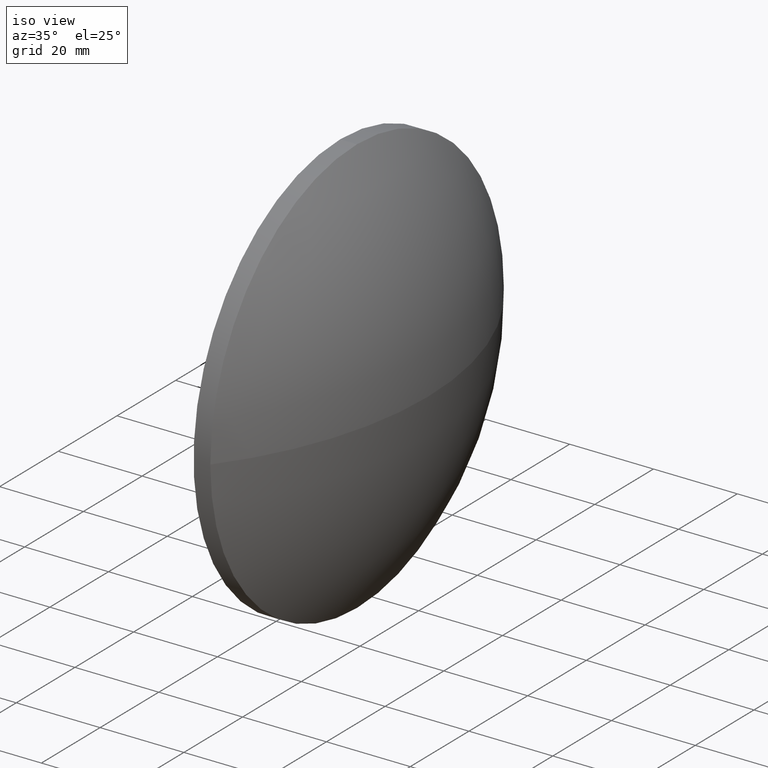
[diagram: clean part render]
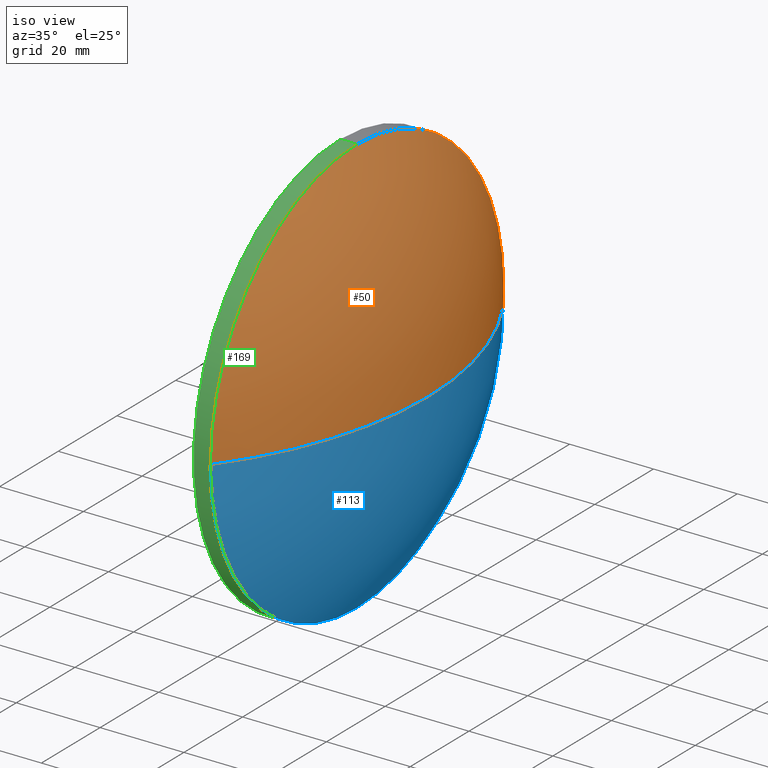
[diagram: same view with three faces highlighted in distinct colors, each labeled with its STEP entity id]
A machine part, iso view with three faces highlighted in distinct colors.
Their STEP definitions:

[orange] entity #50 — the highlighted spherical surface has radius 82.609 mm.
#5 = AXIS2_PLACEMENT_3D ( 'NONE', #85, #70, #136 ) ;
#14 = VERTEX_POINT ( 'NONE', #164 ) ;
#27 = DIRECTION ( 'NONE',  ( -0.0000000000000000000, 0.0000000000000000000, 1.000000000000000000 ) ) ;
#31 = DIRECTION ( 'NONE',  ( -1.000000000000000000, -0.0000000000000000000, -0.0000000000000000000 ) ) ;
#32 = DIRECTION ( 'NONE',  ( 0.0000000000000000000, 0.0000000000000000000, 1.000000000000000000 ) ) ;
#37 = EDGE_LOOP ( 'NONE', ( #75, #96, #149, #99 ) ) ;
#39 = CIRCLE ( 'NONE', #73, 49.99999999999999300 ) ;
#44 = DIRECTION ( 'NONE',  ( 1.000000000000000000, 0.0000000000000000000, 0.0000000000000000000 ) ) ;
#46 = SPHERICAL_SURFACE ( 'NONE', #5, 82.60897626112760900 ) ;
#50 = ADVANCED_FACE ( 'NONE', ( #115 ), #46, .T. ) ;
#55 = DIRECTION ( 'NONE',  ( 0.0000000000000000000, 1.224646799147353200E-016, -1.000000000000000000 ) ) ;
#57 = CARTESIAN_POINT ( 'NONE',  ( 546.2818195196480200, 50.38150423912338000, 0.0000000000000000000 ) ) ;
#59 = VERTEX_POINT ( 'NONE', #139 ) ;
#61 = DIRECTION ( 'NONE',  ( 0.0000000000000000000, 0.0000000000000000000, 1.000000000000000000 ) ) ;
#64 = CARTESIAN_POINT ( 'NONE',  ( 612.0407957807756200, 50.38150423912338700, 0.0000000000000000000 ) ) ;
#68 = CIRCLE ( 'NONE', #135, 82.60897626112759400 ) ;
#70 = DIRECTION ( 'NONE',  ( -0.0000000000000000000, 0.0000000000000000000, -1.000000000000000000 ) ) ;
#73 = AXIS2_PLACEMENT_3D ( 'NONE', #64, #127, #61 ) ;
#75 = ORIENTED_EDGE ( 'NONE', *, *, #138, .F. ) ;
#80 = CARTESIAN_POINT ( 'NONE',  ( 546.2818195196480200, 50.38150423912338000, 0.0000000000000000000 ) ) ;
#81 = AXIS2_PLACEMENT_3D ( 'NONE', #144, #31, #32 ) ;
#85 = CARTESIAN_POINT ( 'NONE',  ( 546.2818195196480200, 50.38150423912338000, 0.0000000000000000000 ) ) ;
#86 = CARTESIAN_POINT ( 'NONE',  ( 612.0407957807756200, 100.3815042391234000, 0.0000000000000000000 ) ) ;
#88 = AXIS2_PLACEMENT_3D ( 'NONE', #57, #27, #44 ) ;
#95 = CARTESIAN_POINT ( 'NONE',  ( 628.8907957807756500, 50.38150423912338700, 0.0000000000000000000 ) ) ;
#96 = ORIENTED_EDGE ( 'NONE', *, *, #123, .T. ) ;
#99 = ORIENTED_EDGE ( 'NONE', *, *, #165, .F. ) ;
#115 = FACE_OUTER_BOUND ( 'NONE', #37, .T. ) ;
#121 = CIRCLE ( 'NONE', #81, 49.99999999999999300 ) ;
#123 = EDGE_CURVE ( 'NONE', #152, #174, #181, .T. ) ;
#127 = DIRECTION ( 'NONE',  ( -1.000000000000000000, -0.0000000000000000000, -0.0000000000000000000 ) ) ;
#135 = AXIS2_PLACEMENT_3D ( 'NONE', #80, #55, #150 ) ;
#136 = DIRECTION ( 'NONE',  ( 0.0000000000000000000, 1.000000000000000000, 0.0000000000000000000 ) ) ;
#138 = EDGE_CURVE ( 'NONE', #152, #14, #68, .T. ) ;
#139 = CARTESIAN_POINT ( 'NONE',  ( 612.0407957807756200, 50.38150423912338700, 49.99999999999999300 ) ) ;
#144 = CARTESIAN_POINT ( 'NONE',  ( 612.0407957807756200, 50.38150423912338700, 0.0000000000000000000 ) ) ;
#149 = ORIENTED_EDGE ( 'NONE', *, *, #180, .F. ) ;
#150 = DIRECTION ( 'NONE',  ( 0.0000000000000000000, 1.000000000000000000, 1.224646799147353500E-016 ) ) ;
#152 = VERTEX_POINT ( 'NONE', #95 ) ;
#164 = CARTESIAN_POINT ( 'NONE',  ( 612.0407957807756200, 0.3815042391233786100, -6.123233995736766100E-015 ) ) ;
#165 = EDGE_CURVE ( 'NONE', #14, #59, #121, .T. ) ;
#174 = VERTEX_POINT ( 'NONE', #86 ) ;
#180 = EDGE_CURVE ( 'NONE', #59, #174, #39, .T. ) ;
#181 = CIRCLE ( 'NONE', #88, 82.60897626112762300 ) ;

[blue] entity #113 — the highlighted spherical surface has radius 82.609 mm.
#2 = DIRECTION ( 'NONE',  ( 0.0000000000000000000, 0.0000000000000000000, 1.000000000000000000 ) ) ;
#6 = CIRCLE ( 'NONE', #172, 49.99999999999999300 ) ;
#14 = VERTEX_POINT ( 'NONE', #164 ) ;
#20 = DIRECTION ( 'NONE',  ( -0.0000000000000000000, 0.0000000000000000000, -1.000000000000000000 ) ) ;
#27 = DIRECTION ( 'NONE',  ( -0.0000000000000000000, 0.0000000000000000000, 1.000000000000000000 ) ) ;
#29 = AXIS2_PLACEMENT_3D ( 'NONE', #173, #119, #51 ) ;
#34 = EDGE_LOOP ( 'NONE', ( #134, #42, #146, #170 ) ) ;
#36 = CIRCLE ( 'NONE', #29, 49.99999999999999300 ) ;
#42 = ORIENTED_EDGE ( 'NONE', *, *, #138, .T. ) ;
#44 = DIRECTION ( 'NONE',  ( 1.000000000000000000, 0.0000000000000000000, 0.0000000000000000000 ) ) ;
#51 = DIRECTION ( 'NONE',  ( 0.0000000000000000000, 0.0000000000000000000, 1.000000000000000000 ) ) ;
#55 = DIRECTION ( 'NONE',  ( 0.0000000000000000000, 1.224646799147353200E-016, -1.000000000000000000 ) ) ;
#57 = CARTESIAN_POINT ( 'NONE',  ( 546.2818195196480200, 50.38150423912338000, 0.0000000000000000000 ) ) ;
#68 = CIRCLE ( 'NONE', #135, 82.60897626112759400 ) ;
#77 = DIRECTION ( 'NONE',  ( 0.0000000000000000000, 1.000000000000000000, 0.0000000000000000000 ) ) ;
#80 = CARTESIAN_POINT ( 'NONE',  ( 546.2818195196480200, 50.38150423912338000, 0.0000000000000000000 ) ) ;
#86 = CARTESIAN_POINT ( 'NONE',  ( 612.0407957807756200, 100.3815042391234000, 0.0000000000000000000 ) ) ;
#87 = SPHERICAL_SURFACE ( 'NONE', #163, 82.60897626112760900 ) ;
#88 = AXIS2_PLACEMENT_3D ( 'NONE', #57, #27, #44 ) ;
#91 = DIRECTION ( 'NONE',  ( -1.000000000000000000, -0.0000000000000000000, -0.0000000000000000000 ) ) ;
#95 = CARTESIAN_POINT ( 'NONE',  ( 628.8907957807756500, 50.38150423912338700, 0.0000000000000000000 ) ) ;
#113 = ADVANCED_FACE ( 'NONE', ( #159 ), #87, .T. ) ;
#116 = EDGE_CURVE ( 'NONE', #177, #14, #6, .T. ) ;
#119 = DIRECTION ( 'NONE',  ( -1.000000000000000000, -0.0000000000000000000, -0.0000000000000000000 ) ) ;
#123 = EDGE_CURVE ( 'NONE', #152, #174, #181, .T. ) ;
#134 = ORIENTED_EDGE ( 'NONE', *, *, #123, .F. ) ;
#135 = AXIS2_PLACEMENT_3D ( 'NONE', #80, #55, #150 ) ;
#138 = EDGE_CURVE ( 'NONE', #152, #14, #68, .T. ) ;
#146 = ORIENTED_EDGE ( 'NONE', *, *, #116, .F. ) ;
#147 = CARTESIAN_POINT ( 'NONE',  ( 546.2818195196480200, 50.38150423912338000, 0.0000000000000000000 ) ) ;
#150 = DIRECTION ( 'NONE',  ( 0.0000000000000000000, 1.000000000000000000, 1.224646799147353500E-016 ) ) ;
#152 = VERTEX_POINT ( 'NONE', #95 ) ;
#159 = FACE_OUTER_BOUND ( 'NONE', #34, .T. ) ;
#160 = CARTESIAN_POINT ( 'NONE',  ( 612.0407957807756200, 50.38150423912338700, 0.0000000000000000000 ) ) ;
#162 = EDGE_CURVE ( 'NONE', #174, #177, #36, .T. ) ;
#163 = AXIS2_PLACEMENT_3D ( 'NONE', #147, #20, #77 ) ;
#164 = CARTESIAN_POINT ( 'NONE',  ( 612.0407957807756200, 0.3815042391233786100, -6.123233995736766100E-015 ) ) ;
#170 = ORIENTED_EDGE ( 'NONE', *, *, #162, .F. ) ;
#172 = AXIS2_PLACEMENT_3D ( 'NONE', #160, #91, #2 ) ;
#173 = CARTESIAN_POINT ( 'NONE',  ( 612.0407957807756200, 50.38150423912338700, 0.0000000000000000000 ) ) ;
#174 = VERTEX_POINT ( 'NONE', #86 ) ;
#177 = VERTEX_POINT ( 'NONE', #186 ) ;
#181 = CIRCLE ( 'NONE', #88, 82.60897626112762300 ) ;
#186 = CARTESIAN_POINT ( 'NONE',  ( 612.0407957807756200, 50.38150423912339400, -49.99999999999999300 ) ) ;

[green] entity #169 — the highlighted cylindrical surface (partial cylindrical patch) has radius 50 mm, axis along (-1, -0, -0).
#2 = DIRECTION ( 'NONE',  ( 0.0000000000000000000, 0.0000000000000000000, 1.000000000000000000 ) ) ;
#4 = ORIENTED_EDGE ( 'NONE', *, *, #33, .F. ) ;
#6 = CIRCLE ( 'NONE', #172, 49.99999999999999300 ) ;
#8 = VERTEX_POINT ( 'NONE', #71 ) ;
#14 = VERTEX_POINT ( 'NONE', #164 ) ;
#17 = CARTESIAN_POINT ( 'NONE',  ( 589.4330370124314400, 50.38150423912338700, 0.0000000000000000000 ) ) ;
#22 = EDGE_CURVE ( 'NONE', #112, #8, #82, .T. ) ;
#24 = DIRECTION ( 'NONE',  ( -1.000000000000000000, -0.0000000000000000000, -0.0000000000000000000 ) ) ;
#25 = VECTOR ( 'NONE', #66, 1000.000000000000000 ) ;
#31 = DIRECTION ( 'NONE',  ( -1.000000000000000000, -0.0000000000000000000, -0.0000000000000000000 ) ) ;
#32 = DIRECTION ( 'NONE',  ( 0.0000000000000000000, 0.0000000000000000000, 1.000000000000000000 ) ) ;
#33 = EDGE_CURVE ( 'NONE', #177, #112, #183, .T. ) ;
#41 = EDGE_LOOP ( 'NONE', ( #4, #79, #120, #106, #167 ) ) ;
#59 = VERTEX_POINT ( 'NONE', #139 ) ;
#63 = DIRECTION ( 'NONE',  ( 0.0000000000000000000, 0.0000000000000000000, 1.000000000000000000 ) ) ;
#66 = DIRECTION ( 'NONE',  ( -1.000000000000000000, -0.0000000000000000000, -0.0000000000000000000 ) ) ;
#71 = CARTESIAN_POINT ( 'NONE',  ( 608.0407957807756200, 50.38150423912338700, 49.99999999999999300 ) ) ;
#79 = ORIENTED_EDGE ( 'NONE', *, *, #116, .T. ) ;
#81 = AXIS2_PLACEMENT_3D ( 'NONE', #144, #31, #32 ) ;
#82 = CIRCLE ( 'NONE', #157, 49.99999999999999300 ) ;
#83 = CARTESIAN_POINT ( 'NONE',  ( 608.0407957807756200, 50.38150423912338700, 0.0000000000000000000 ) ) ;
#91 = DIRECTION ( 'NONE',  ( -1.000000000000000000, -0.0000000000000000000, -0.0000000000000000000 ) ) ;
#92 = CARTESIAN_POINT ( 'NONE',  ( 589.4330370124314400, 50.38150423912339400, -49.99999999999999300 ) ) ;
#100 = CARTESIAN_POINT ( 'NONE',  ( 589.4330370124314400, 50.38150423912338700, 49.99999999999999300 ) ) ;
#102 = EDGE_CURVE ( 'NONE', #59, #8, #176, .T. ) ;
#106 = ORIENTED_EDGE ( 'NONE', *, *, #102, .T. ) ;
#110 = FACE_OUTER_BOUND ( 'NONE', #41, .T. ) ;
#112 = VERTEX_POINT ( 'NONE', #118 ) ;
#116 = EDGE_CURVE ( 'NONE', #177, #14, #6, .T. ) ;
#117 = CYLINDRICAL_SURFACE ( 'NONE', #166, 49.99999999999999300 ) ;
#118 = CARTESIAN_POINT ( 'NONE',  ( 608.0407957807756200, 50.38150423912339400, -49.99999999999999300 ) ) ;
#120 = ORIENTED_EDGE ( 'NONE', *, *, #165, .T. ) ;
#121 = CIRCLE ( 'NONE', #81, 49.99999999999999300 ) ;
#126 = VECTOR ( 'NONE', #178, 1000.000000000000000 ) ;
#129 = DIRECTION ( 'NONE',  ( -1.000000000000000000, -0.0000000000000000000, -0.0000000000000000000 ) ) ;
#137 = DIRECTION ( 'NONE',  ( 0.0000000000000000000, 0.0000000000000000000, 1.000000000000000000 ) ) ;
#139 = CARTESIAN_POINT ( 'NONE',  ( 612.0407957807756200, 50.38150423912338700, 49.99999999999999300 ) ) ;
#144 = CARTESIAN_POINT ( 'NONE',  ( 612.0407957807756200, 50.38150423912338700, 0.0000000000000000000 ) ) ;
#157 = AXIS2_PLACEMENT_3D ( 'NONE', #83, #24, #137 ) ;
#160 = CARTESIAN_POINT ( 'NONE',  ( 612.0407957807756200, 50.38150423912338700, 0.0000000000000000000 ) ) ;
#164 = CARTESIAN_POINT ( 'NONE',  ( 612.0407957807756200, 0.3815042391233786100, -6.123233995736766100E-015 ) ) ;
#165 = EDGE_CURVE ( 'NONE', #14, #59, #121, .T. ) ;
#166 = AXIS2_PLACEMENT_3D ( 'NONE', #17, #129, #63 ) ;
#167 = ORIENTED_EDGE ( 'NONE', *, *, #22, .F. ) ;
#169 = ADVANCED_FACE ( 'NONE', ( #110 ), #117, .T. ) ;
#172 = AXIS2_PLACEMENT_3D ( 'NONE', #160, #91, #2 ) ;
#176 = LINE ( 'NONE', #100, #25 ) ;
#177 = VERTEX_POINT ( 'NONE', #186 ) ;
#178 = DIRECTION ( 'NONE',  ( -1.000000000000000000, -0.0000000000000000000, -0.0000000000000000000 ) ) ;
#183 = LINE ( 'NONE', #92, #126 ) ;
#186 = CARTESIAN_POINT ( 'NONE',  ( 612.0407957807756200, 50.38150423912339400, -49.99999999999999300 ) ) ;